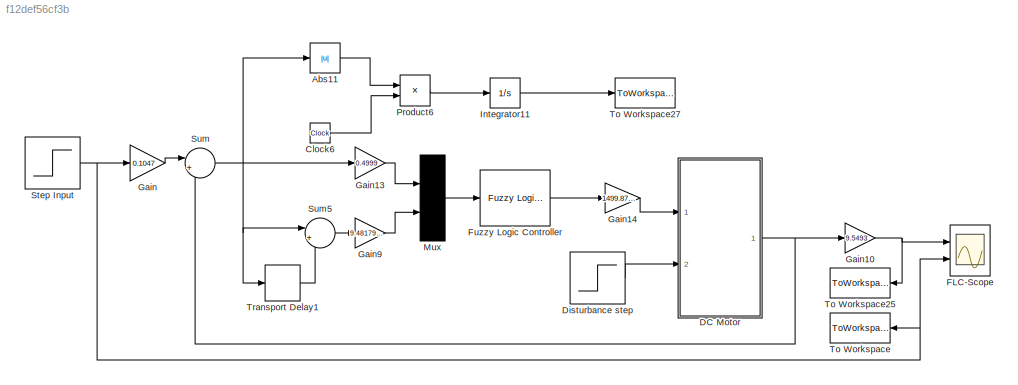
MODEL slx_f12def56cf3b
KIND model
CONFIG AbsTol = auto
CONFIG EnableMultiTasking = off
CONFIG FixedStep = auto
CONFIG MaxStep = auto
CONFIG MinStep = auto
CONFIG RelTol = 1e-3
CONFIG SampleTimeConstraint = Unconstrained
CONFIG Solver = VariableStepAuto
CONFIG SolverName = VariableStepAuto
CONFIG StartTime = 0.0
CONFIG StopTime = 10.0
BLOCK [Abs] Abs11
  SaturateOnIntegerOverflow = off
BLOCK [Clock] Clock6
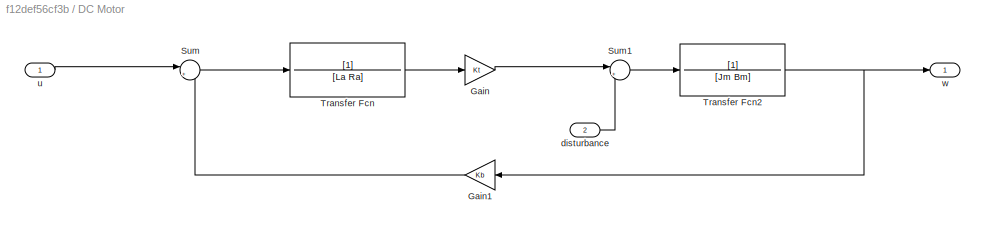
BLOCK [SubSystem] DC Motor
  Ports = [2, 1]
  RequestExecContextInheritance = off
BLOCK [Gain] DC Motor/Gain
  Gain = Kt
  OutDataTypeStr = Inherit: Inherit via internal rule
  ParamDataTypeStr = Inherit: Inherit via internal rule
  SaturateOnIntegerOverflow = off
BLOCK [Gain] DC Motor/Gain1
  Gain = Kb
  OutDataTypeStr = Inherit: Inherit via internal rule
  ParamDataTypeStr = Inherit: Inherit via internal rule
  SaturateOnIntegerOverflow = off
BLOCK [Sum] DC Motor/Sum
  IconShape = round
  InputSameDT = off
  Inputs = |+-
  OutDataTypeStr = Inherit: Inherit via internal rule
  Ports = [2, 1]
  SaturateOnIntegerOverflow = off
BLOCK [Sum] DC Motor/Sum1
  IconShape = round
  InputSameDT = off
  Inputs = |+-
  OutDataTypeStr = Inherit: Inherit via internal rule
  Ports = [2, 1]
  SaturateOnIntegerOverflow = off
BLOCK [TransferFcn] DC Motor/Transfer Fcn
  Denominator = [La Ra]
BLOCK [TransferFcn] DC Motor/Transfer Fcn2
  Denominator = [Jm Bm]
BLOCK [Inport] DC Motor/disturbance
  IconDisplay = Port number
  Port = 2
BLOCK [Inport] DC Motor/u
  IconDisplay = Port number
BLOCK [Outport] DC Motor/w
  IconDisplay = Port number
BLOCK [Step] Disturbance step
  After = 0.01
  SampleTime = 0
  Time = 0
BLOCK [Scope] FLC-Scope
  Floating = off
  NumInputPorts = 2
  Ports = [2]
  ScopeSpecificationString = Simulink.scopes.TimeScopeBlockCfg('CurrentConfiguration', extmgr.ConfigurationSet(extmgr.Configuration('Core','General UI',true),extmgr.Configuration('Core','Source UI',true),extmgr.Configuration('Sources','WiredSimulink',true,'DataLoggingVariableName','ScopeData1'),extmgr.Configuration('Visuals','Time Domain',true,'SerializedDisplays',{struct('MinYLimReal','-0.6661','MaxYLimReal','1.18512','YLabe...<+1485ch>
BLOCK [Reference] Fuzzy Logic Controller  REF=fuzblock/Fuzzy Logic   (lib defined in mdl_858b3b3e7478)
Controller
  Ports = [1, 1]
  SourceBlock = fuzblock/Fuzzy Logic \nController
  SourceProductBaseCode = FL
  SourceProductName = Fuzzy Logic Toolbox
  SourceType = Fuzzy Inference System
BLOCK [Gain] Gain
  Gain = 0.1047
  OutDataTypeStr = Inherit: Inherit via internal rule
  ParamDataTypeStr = Inherit: Inherit via internal rule
  SaturateOnIntegerOverflow = off
BLOCK [Gain] Gain10
  Gain = 9.5493
  OutDataTypeStr = Inherit: Inherit via internal rule
  ParamDataTypeStr = Inherit: Inherit via internal rule
  SaturateOnIntegerOverflow = off
BLOCK [Gain] Gain13
  Gain = 0.4999
  OutDataTypeStr = Inherit: Inherit via internal rule
  ParamDataTypeStr = Inherit: Inherit via internal rule
  SaturateOnIntegerOverflow = off
BLOCK [Gain] Gain14
  Gain = 1499.8751
  OutDataTypeStr = Inherit: Inherit via internal rule
  ParamDataTypeStr = Inherit: Inherit via internal rule
  SaturateOnIntegerOverflow = off
BLOCK [Gain] Gain9
  Gain = 9.4817927
  OutDataTypeStr = Inherit: Inherit via internal rule
  ParamDataTypeStr = Inherit: Inherit via internal rule
  SaturateOnIntegerOverflow = off
BLOCK [Integrator] Integrator11
  Ports = [1, 1]
BLOCK [Mux] Mux
  Inputs = 2
  Ports = [2, 1]
BLOCK [Product] Product6
  InputSameDT = off
  OutDataTypeStr = Inherit: Inherit via internal rule
  Ports = [2, 1]
  RndMeth = Floor
  SaturateOnIntegerOverflow = off
BLOCK [Step] Step Input
  SampleTime = 0
  Time = 0
BLOCK [Sum] Sum
  IconShape = round
  InputSameDT = off
  Inputs = |+-
  OutDataTypeStr = Inherit: Inherit via internal rule
  Ports = [2, 1]
  SaturateOnIntegerOverflow = off
BLOCK [Sum] Sum5
  IconShape = round
  InputSameDT = off
  Inputs = |+-
  OutDataTypeStr = Inherit: Inherit via internal rule
  Ports = [2, 1]
  SaturateOnIntegerOverflow = off
BLOCK [ToWorkspace] To Workspace
  FixptAsFi = on
  MaxDataPoints = inf
  Ports = [1]
  SampleTime = -1
  SaveFormat = Timeseries
  VariableName = w_out_FLC
BLOCK [ToWorkspace] To Workspace25
  FixptAsFi = on
  MaxDataPoints = inf
  Ports = [1]
  SampleTime = -1
  SaveFormat = Timeseries
  VariableName = w_out_FLC
BLOCK [ToWorkspace] To Workspace27
  FixptAsFi = on
  MaxDataPoints = inf
  Ports = [1]
  SampleTime = -1
  SaveFormat = Timeseries
  VariableName = ITAE_Fuzzy
BLOCK [TransportDelay] Transport Delay1
  BufferSize = 2048
  DelayTime = 0.00056797432
  Ports = [1, 1]
LINE Abs11:1 -> Product6:1
LINE Clock6:1 -> Product6:2
LINE DC Motor/Gain1:1 -> DC Motor/Sum:2
LINE DC Motor/Gain:1 -> DC Motor/Sum1:1
LINE DC Motor/Sum1:1 -> DC Motor/Transfer Fcn2:1
LINE DC Motor/Sum:1 -> DC Motor/Transfer Fcn:1
NET DC Motor/Transfer Fcn2:1 -> DC Motor/Gain1:1, DC Motor/w:1
LINE DC Motor/Transfer Fcn:1 -> DC Motor/Gain:1
LINE DC Motor/disturbance:1 -> DC Motor/Sum1:2
LINE DC Motor/u:1 -> DC Motor/Sum:1
NET DC Motor:1 -> Gain10:1, Sum:2
LINE Disturbance step:1 -> DC Motor:2
LINE Fuzzy Logic Controller:1 -> Gain14:1
NET Gain10:1 -> FLC-Scope:1, To Workspace25:1
LINE Gain13:1 -> Mux:1
LINE Gain14:1 -> DC Motor:1
LINE Gain9:1 -> Mux:2
LINE Gain:1 -> Sum:1
LINE Integrator11:1 -> To Workspace27:1
LINE Mux:1 -> Fuzzy Logic Controller:1
LINE Product6:1 -> Integrator11:1
NET Step Input:1 -> FLC-Scope:2, Gain:1, To Workspace:1
LINE Sum5:1 -> Gain9:1
NET Sum:1 -> Abs11:1, Gain13:1, Sum5:1, Transport Delay1:1
LINE Transport Delay1:1 -> Sum5:2
note: NET lines group one-source signal fan-out (src -> all destinations, sorted); 1:1 wires keep LINE
